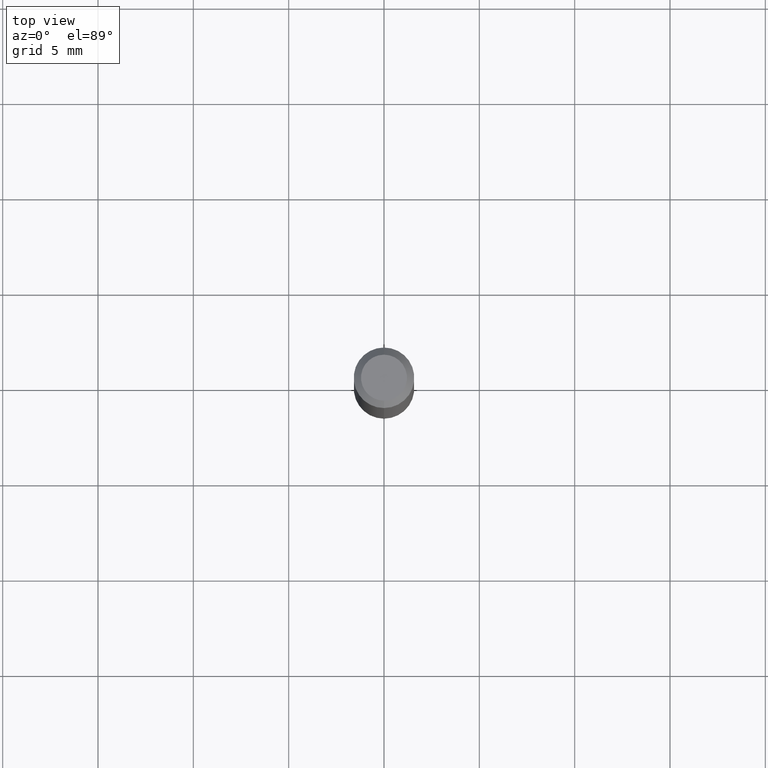
[diagram: clean part render]
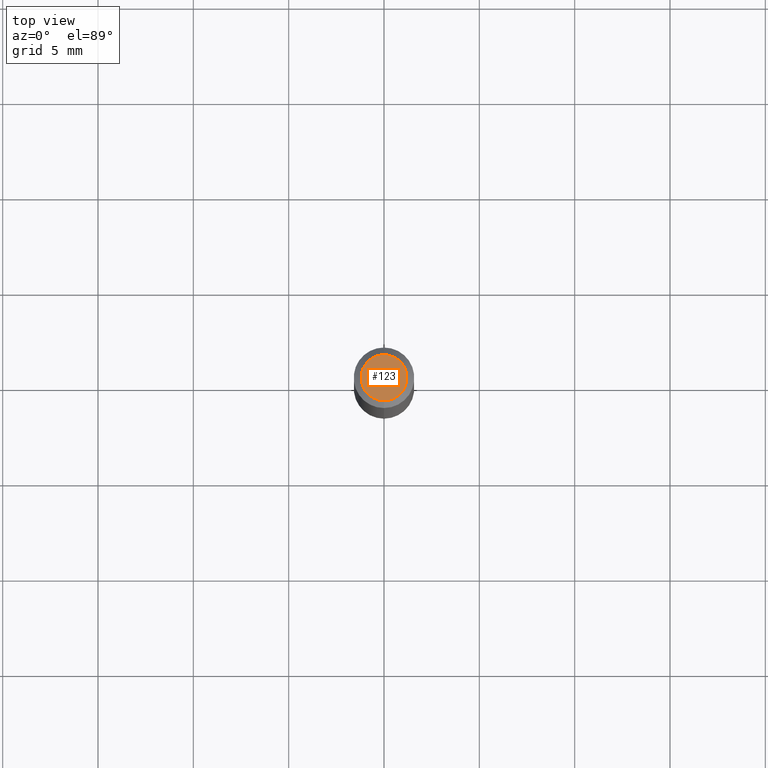
[diagram: same view with one face highlighted and labeled with its STEP entity id]
A machine part, top view. The second image highlights one B-rep face of the part: STEP entity #123.
In plain terms, the highlighted planar face has unit normal (0, -0, -1).
Its self-contained STEP definition (entity closure, byte-faithful):
#16 = CARTESIAN_POINT ( 'NONE',  ( 8.023922595941391550E-45, -1.145756951166352322E-30, -3.281358236789170808E-16 ) ) ;
#20 = DIRECTION ( 'NONE',  ( -2.445305272061013346E-29, 3.491715529016674512E-15, 1.000000000000000000 ) ) ;
#27 = AXIS2_PLACEMENT_3D ( 'NONE', #16, #233, #441 ) ;
#29 = AXIS2_PLACEMENT_3D ( 'NONE', #414, #20, #235 ) ;
#51 = EDGE_CURVE ( 'NONE', #99, #302, #400, .T. ) ;
#79 = DIRECTION ( 'NONE',  ( 2.445305272061012785E-29, -3.491715529016674906E-15, -1.000000000000000000 ) ) ;
#92 = EDGE_LOOP ( 'NONE', ( #287, #153 ) ) ;
#98 = AXIS2_PLACEMENT_3D ( 'NONE', #201, #79, #349 ) ;
#99 = VERTEX_POINT ( 'NONE', #115 ) ;
#115 = CARTESIAN_POINT ( 'NONE',  ( 3.840629472727447874E-16, 0.04749999999999999362, -4.939923113072091241E-16 ) ) ;
#123 = ADVANCED_FACE ( 'NONE', ( #506 ), #276, .F. ) ;
#153 = ORIENTED_EDGE ( 'NONE', *, *, #186, .T. ) ;
#186 = EDGE_CURVE ( 'NONE', #302, #99, #445, .T. ) ;
#201 = CARTESIAN_POINT ( 'NONE',  ( 3.316907271900976096E-16, 0.04749999999999999362, -3.299243994677505097E-16 ) ) ;
#233 = DIRECTION ( 'NONE',  ( -2.445305272061013346E-29, 3.491715529016674512E-15, 1.000000000000000000 ) ) ;
#235 = DIRECTION ( 'NONE',  ( -6.982962677686266711E-15, -1.000000000000000000, 3.491715529016674906E-15 ) ) ;
#276 = PLANE ( 'NONE',  #98 ) ;
#287 = ORIENTED_EDGE ( 'NONE', *, *, #51, .T. ) ;
#302 = VERTEX_POINT ( 'NONE', #478 ) ;
#349 = DIRECTION ( 'NONE',  ( 6.982962677686265922E-15, 1.000000000000000000, -3.491715529016674906E-15 ) ) ;
#400 = CIRCLE ( 'NONE', #29, 0.04749999999999999362 ) ;
#414 = CARTESIAN_POINT ( 'NONE',  ( 8.023922595941391550E-45, -1.145756951166352322E-30, -3.281358236789170808E-16 ) ) ;
#441 = DIRECTION ( 'NONE',  ( -6.982962677686266711E-15, -1.000000000000000000, 3.491715529016674906E-15 ) ) ;
#445 = CIRCLE ( 'NONE', #27, 0.04749999999999999362 ) ;
#478 = CARTESIAN_POINT ( 'NONE',  ( -3.773273898774340269E-16, -0.04749999999999999362, -1.622793360506250376E-16 ) ) ;
#506 = FACE_OUTER_BOUND ( 'NONE', #92, .T. ) ;